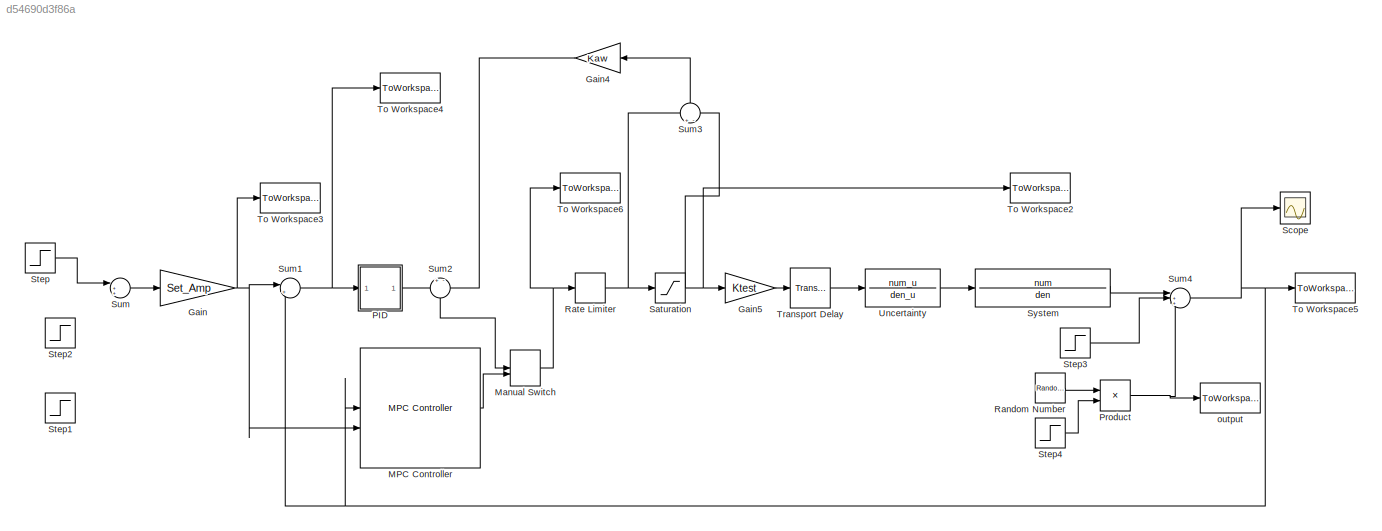
MODEL slx_d54690d3f86a
KIND model
CONFIG AbsTol = auto
CONFIG EnableMultiTasking = off
CONFIG FixedStep = dt
CONFIG MaxStep = auto
CONFIG MinStep = auto
CONFIG RelTol = 1e-3
CONFIG SampleTimeConstraint = Unconstrained
CONFIG SolverName = ode4
CONFIG StartTime = 0.0
CONFIG StopTime = Sim_time
BLOCK [Gain] Gain
  Gain = Set_Amp
BLOCK [Gain] Gain4
  Gain = Kaw
  NameLocation = top
BLOCK [Gain] Gain5
  Gain = Ktest
BLOCK [Reference] MPC Controller  REF=mpclib/MPC Controller  (lib defined in mdl_ae329e0e0455)
  SCDEnableBlockLinearizationSpecification = on
  SourceBlock = mpclib/MPC Controller
  SourceType = MPC
BLOCK [ManualSwitch] Manual Switch
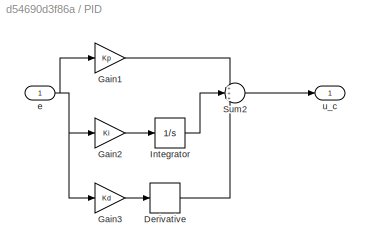
BLOCK [SubSystem] PID
BLOCK [Derivative] PID/Derivative
BLOCK [Gain] PID/Gain1
  Gain = Kp
BLOCK [Gain] PID/Gain2
  Gain = Ki
BLOCK [Gain] PID/Gain3
  Gain = Kd
BLOCK [Integrator] PID/Integrator
BLOCK [Sum] PID/Sum2
  Inputs = +++
BLOCK [Inport] PID/e
BLOCK [Outport] PID/u_c
BLOCK [Product] Product
BLOCK [RandomNumber] Random Number
  SampleTime = dt
  Variance = noise_var
BLOCK [RateLimiter] Rate Limiter
  FallingSlewLimit = -RSat
  RisingSlewLimit = RSat
  SampleTimeMode = inherited
BLOCK [Saturate] Saturation
  LowerLimit = -Sat
  UpperLimit = Sat
BLOCK [Scope] Scope
  Floating = off
  NumInputPorts = 1
  ScopeSpecificationString = Simulink.scopes.TimeScopeBlockCfg('CurrentConfiguration', extmgr.ConfigurationSet(extmgr.Configuration('Core','General UI',true),extmgr.Configuration('Core','Source UI',true),extmgr.Configuration('Sources','WiredSimulink',true),extmgr.Configuration('Visuals','Time Domain',true,'SerializedDisplays',{struct('MinYLimReal','-2.53186','MaxYLimReal','22.78675','YLabelReal','','MinYLimMag','0.00000','Max...<+1378ch>
BLOCK [Step] Step
  SampleTime = 0
  Time = 0
BLOCK [Step] Step1
  After = 3
  SampleTime = 0
  Time = 40
BLOCK [Step] Step2
  After = -2
  SampleTime = 0
  Time = 21
BLOCK [Step] Step3
  After = dist_amp
  SampleTime = 0
  Time = 15
BLOCK [Step] Step4
  SampleTime = 0
  Time = 20
BLOCK [Sum] Sum
  Inputs = |+++
BLOCK [Sum] Sum1
  Inputs = |+-
BLOCK [Sum] Sum2
  Inputs = +-
  NameLocation = left
BLOCK [Sum] Sum3
  Inputs = +-
  NameLocation = right
BLOCK [Sum] Sum4
  Inputs = |+++
BLOCK [TransferFcn] System
  Denominator = den
  Numerator = num
BLOCK [ToWorkspace] To Workspace2
  MaxDataPoints = inf
  SampleTime = -1
  VariableName = u_ac
BLOCK [ToWorkspace] To Workspace3
  MaxDataPoints = inf
  SampleTime = -1
  VariableName = r
BLOCK [ToWorkspace] To Workspace4
  MaxDataPoints = inf
  SampleTime = -1
  VariableName = e
BLOCK [ToWorkspace] To Workspace5
  MaxDataPoints = inf
  SampleTime = -1
  VariableName = y
BLOCK [ToWorkspace] To Workspace6
  MaxDataPoints = inf
  SampleTime = -1
  VariableName = u_c
BLOCK [TransportDelay] Transport Delay
  DelayTime = Dtest
BLOCK [TransferFcn] Uncertainty
  Denominator = den_u
  Numerator = num_u
BLOCK [ToWorkspace] output
  MaxDataPoints = inf
  SampleTime = -1
  VariableName = n
LINE Gain4:1 -> Sum2:2
LINE Gain5:1 -> Transport Delay:1
NET Gain:1 -> MPC Controller:2, Sum1:1, To Workspace3:1
LINE MPC Controller:1 -> Manual Switch:2
NET Manual Switch:1 -> Rate Limiter:1, To Workspace6:1
LINE PID/Derivative:1 -> PID/Sum2:3
LINE PID/Gain1:1 -> PID/Sum2:1
LINE PID/Gain2:1 -> PID/Integrator:1
LINE PID/Gain3:1 -> PID/Derivative:1
LINE PID/Integrator:1 -> PID/Sum2:2
LINE PID/Sum2:1 -> PID/u_c:1
NET PID/e:1 -> PID/Gain1:1, PID/Gain2:1, PID/Gain3:1
LINE PID:1 -> Sum2:1
NET Product:1 -> Sum4:3, output:1
LINE Random Number:1 -> Product:1
NET Rate Limiter:1 -> Saturation:1, Sum3:1
NET Saturation:1 -> Gain5:1, Sum3:2, To Workspace2:1
LINE Step3:1 -> Sum4:2
LINE Step4:1 -> Product:2
LINE Step:1 -> Sum:1
NET Sum1:1 -> PID:1, To Workspace4:1
LINE Sum2:1 -> Manual Switch:1
LINE Sum3:1 -> Gain4:1
NET Sum4:1 -> MPC Controller:1, Scope:1, Sum1:2, To Workspace5:1
LINE Sum:1 -> Gain:1
LINE System:1 -> Sum4:1
LINE Transport Delay:1 -> Uncertainty:1
LINE Uncertainty:1 -> System:1
note: NET lines group one-source signal fan-out (src -> all destinations, sorted); 1:1 wires keep LINE
